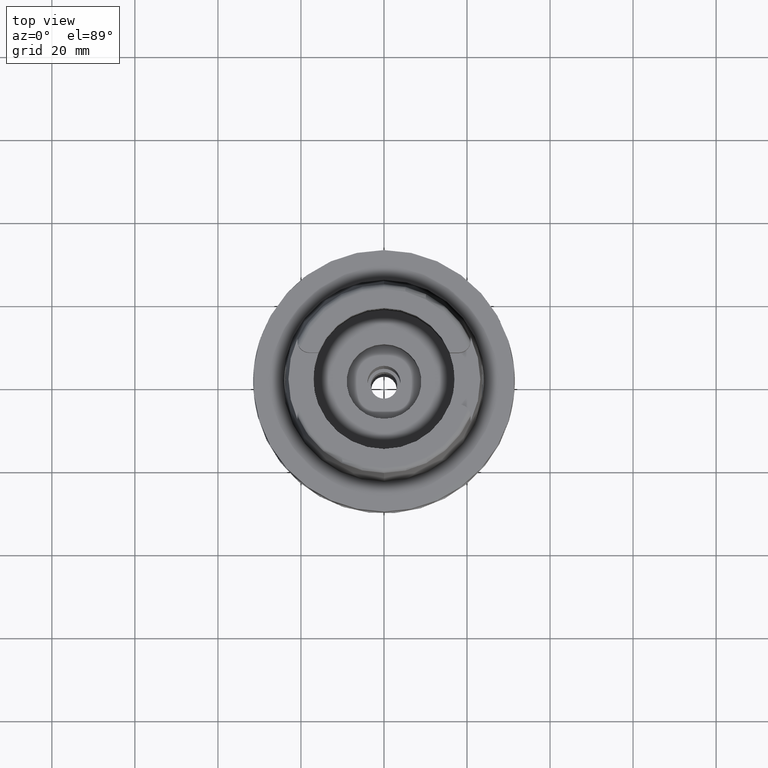
[diagram: clean part render]
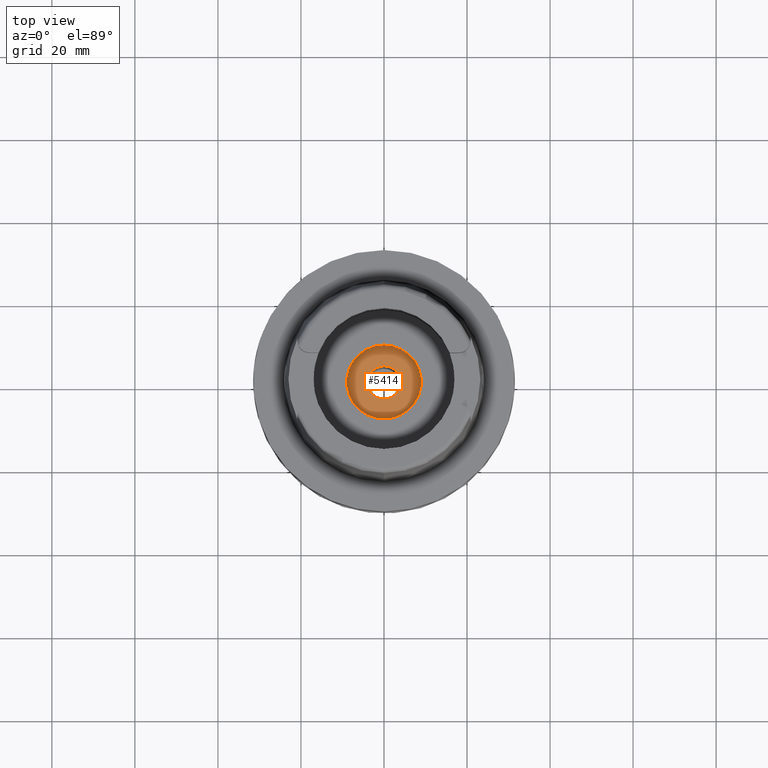
[diagram: same view with one face highlighted and labeled with its STEP entity id]
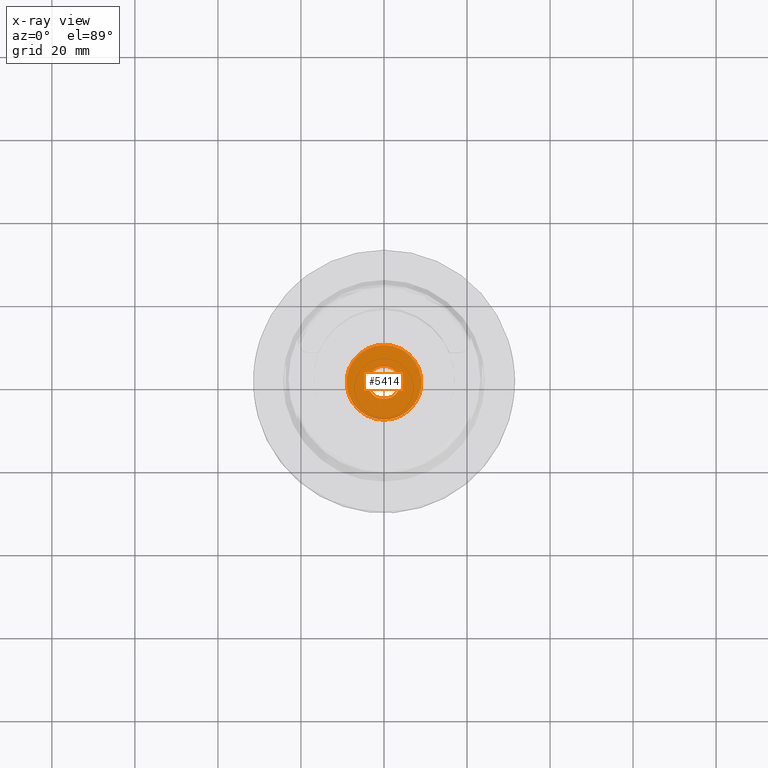
[diagram: x-ray of the same camera — body ghosted, the highlighted face saturated]
A machine part, top view. The second image highlights one B-rep face of the part: STEP entity #5414.
The next image is the same camera in x-ray: the body ghosted, the highlighted face saturated — about 0% of this face is hidden behind the body in this view.
In plain terms, the highlighted planar face has unit normal (0, 0, -1).
Its self-contained STEP definition (entity closure, byte-faithful):
#36 = EDGE_LOOP ( 'NONE', ( #1459, #4533 ) ) ;
#61 = VERTEX_POINT ( 'NONE', #3716 ) ;
#122 = CIRCLE ( 'NONE', #4747, 4.000000000000000000 ) ;
#134 = FACE_OUTER_BOUND ( 'NONE', #36, .T. ) ;
#188 = VERTEX_POINT ( 'NONE', #2000 ) ;
#271 = DIRECTION ( 'NONE',  ( 0.0000000000000000000, 0.0000000000000000000, -1.000000000000000000 ) ) ;
#376 = CIRCLE ( 'NONE', #1075, 4.000000000000000000 ) ;
#719 = AXIS2_PLACEMENT_3D ( 'NONE', #4731, #1811, #3098 ) ;
#951 = DIRECTION ( 'NONE',  ( 0.0000000000000000000, -1.000000000000000000, 0.0000000000000000000 ) ) ;
#977 = CARTESIAN_POINT ( 'NONE',  ( 0.0000000000000000000, 0.0000000000000000000, -21.94999999999999929 ) ) ;
#1075 = AXIS2_PLACEMENT_3D ( 'NONE', #3092, #1363, #951 ) ;
#1106 = ORIENTED_EDGE ( 'NONE', *, *, #1449, .F. ) ;
#1363 = DIRECTION ( 'NONE',  ( 0.0000000000000000000, 0.0000000000000000000, 1.000000000000000000 ) ) ;
#1449 = EDGE_CURVE ( 'NONE', #61, #4820, #376, .T. ) ;
#1459 = ORIENTED_EDGE ( 'NONE', *, *, #4953, .F. ) ;
#1512 = EDGE_CURVE ( 'NONE', #4820, #61, #122, .T. ) ;
#1772 = FACE_BOUND ( 'NONE', #2789, .T. ) ;
#1805 = DIRECTION ( 'NONE',  ( 0.0000000000000000000, 1.000000000000000000, 0.0000000000000000000 ) ) ;
#1811 = DIRECTION ( 'NONE',  ( 0.0000000000000000000, 0.0000000000000000000, -1.000000000000000000 ) ) ;
#1901 = EDGE_CURVE ( 'NONE', #4390, #188, #2392, .T. ) ;
#1912 = DIRECTION ( 'NONE',  ( 0.0000000000000000000, -1.000000000000000000, 0.0000000000000000000 ) ) ;
#2000 = CARTESIAN_POINT ( 'NONE',  ( 0.0000000000000000000, 9.000000000000000000, -21.94999999999999929 ) ) ;
#2180 = DIRECTION ( 'NONE',  ( 0.0000000000000000000, 0.0000000000000000000, 1.000000000000000000 ) ) ;
#2287 = CIRCLE ( 'NONE', #719, 9.000000000000000000 ) ;
#2392 = CIRCLE ( 'NONE', #4404, 9.000000000000000000 ) ;
#2476 = CARTESIAN_POINT ( 'NONE',  ( 0.0000000000000000000, 4.000000000000000000, -21.94999999999999929 ) ) ;
#2557 = CARTESIAN_POINT ( 'NONE',  ( 0.0000000000000000000, -9.000000000000000000, -21.94999999999999929 ) ) ;
#2586 = ORIENTED_EDGE ( 'NONE', *, *, #1512, .F. ) ;
#2683 = DIRECTION ( 'NONE',  ( 0.0000000000000000000, 0.0000000000000000000, -1.000000000000000000 ) ) ;
#2789 = EDGE_LOOP ( 'NONE', ( #2586, #1106 ) ) ;
#2824 = CARTESIAN_POINT ( 'NONE',  ( 0.0000000000000000000, 0.0000000000000000000, -21.94999999999999929 ) ) ;
#3092 = CARTESIAN_POINT ( 'NONE',  ( 0.0000000000000000000, 0.0000000000000000000, -21.94999999999999929 ) ) ;
#3098 = DIRECTION ( 'NONE',  ( 0.0000000000000000000, 1.000000000000000000, 0.0000000000000000000 ) ) ;
#3456 = PLANE ( 'NONE',  #5018 ) ;
#3716 = CARTESIAN_POINT ( 'NONE',  ( 0.0000000000000000000, -4.000000000000000000, -21.94999999999999929 ) ) ;
#3921 = CARTESIAN_POINT ( 'NONE',  ( 0.0000000000000000000, 0.0000000000000000000, -21.94999999999999929 ) ) ;
#4258 = DIRECTION ( 'NONE',  ( 0.0000000000000000000, -1.000000000000000000, 0.0000000000000000000 ) ) ;
#4390 = VERTEX_POINT ( 'NONE', #2557 ) ;
#4404 = AXIS2_PLACEMENT_3D ( 'NONE', #2824, #271, #1912 ) ;
#4533 = ORIENTED_EDGE ( 'NONE', *, *, #1901, .F. ) ;
#4731 = CARTESIAN_POINT ( 'NONE',  ( 0.0000000000000000000, 0.0000000000000000000, -21.94999999999999929 ) ) ;
#4747 = AXIS2_PLACEMENT_3D ( 'NONE', #977, #2180, #1805 ) ;
#4820 = VERTEX_POINT ( 'NONE', #2476 ) ;
#4953 = EDGE_CURVE ( 'NONE', #188, #4390, #2287, .T. ) ;
#5018 = AXIS2_PLACEMENT_3D ( 'NONE', #3921, #2683, #4258 ) ;
#5414 = ADVANCED_FACE ( 'NONE', ( #134, #1772 ), #3456, .F. ) ;